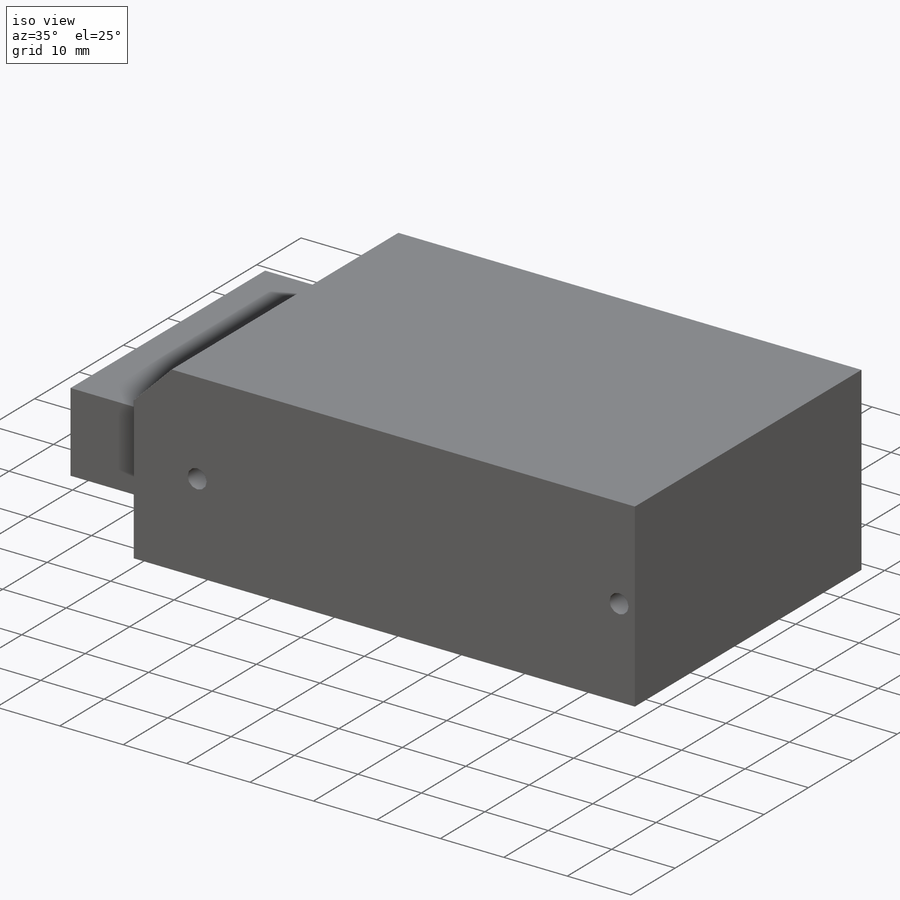
[diagram: iso view]
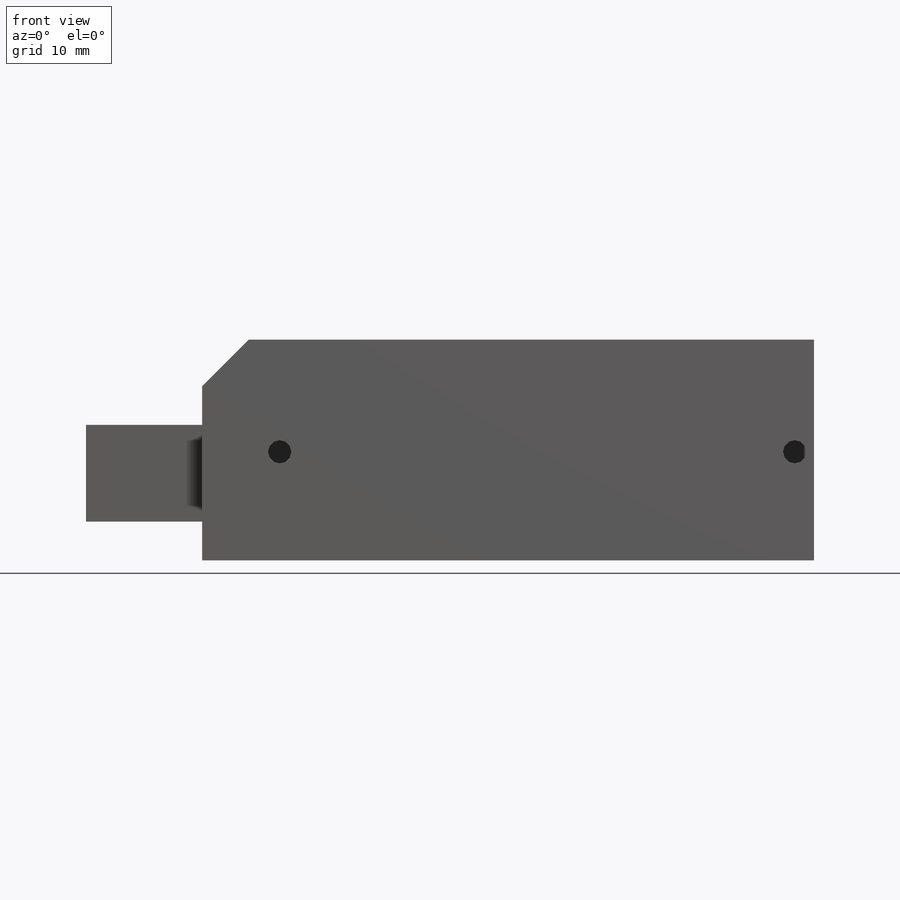
[diagram: front view]
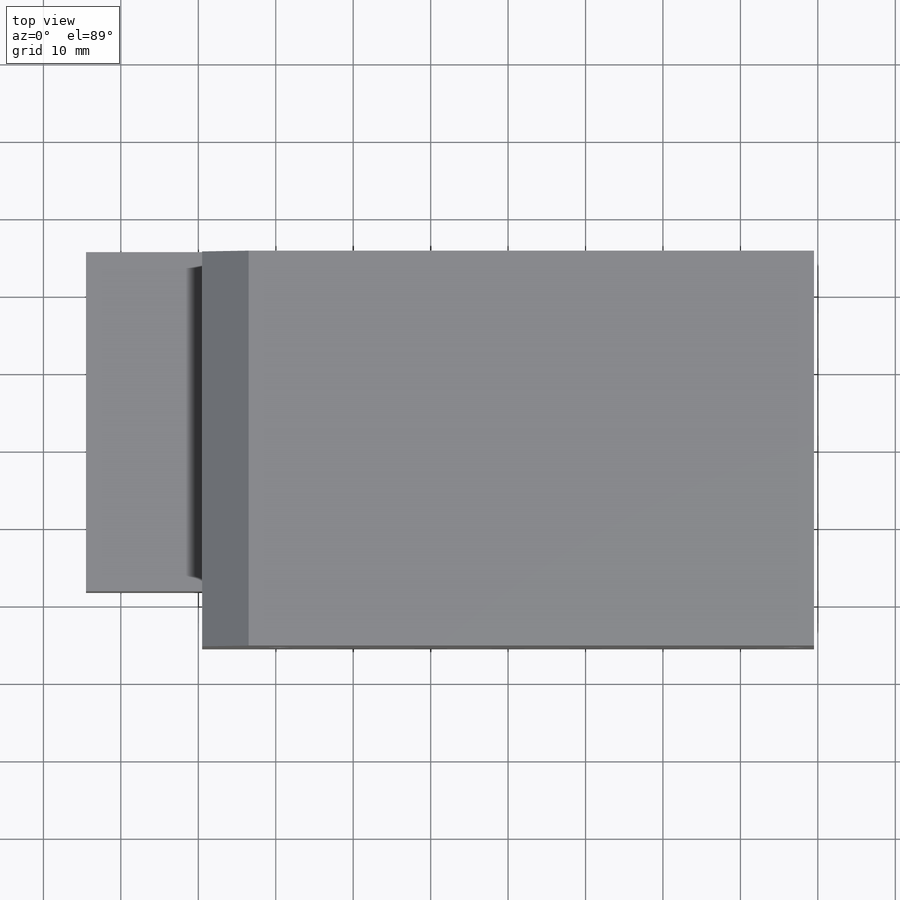
[diagram: top view]
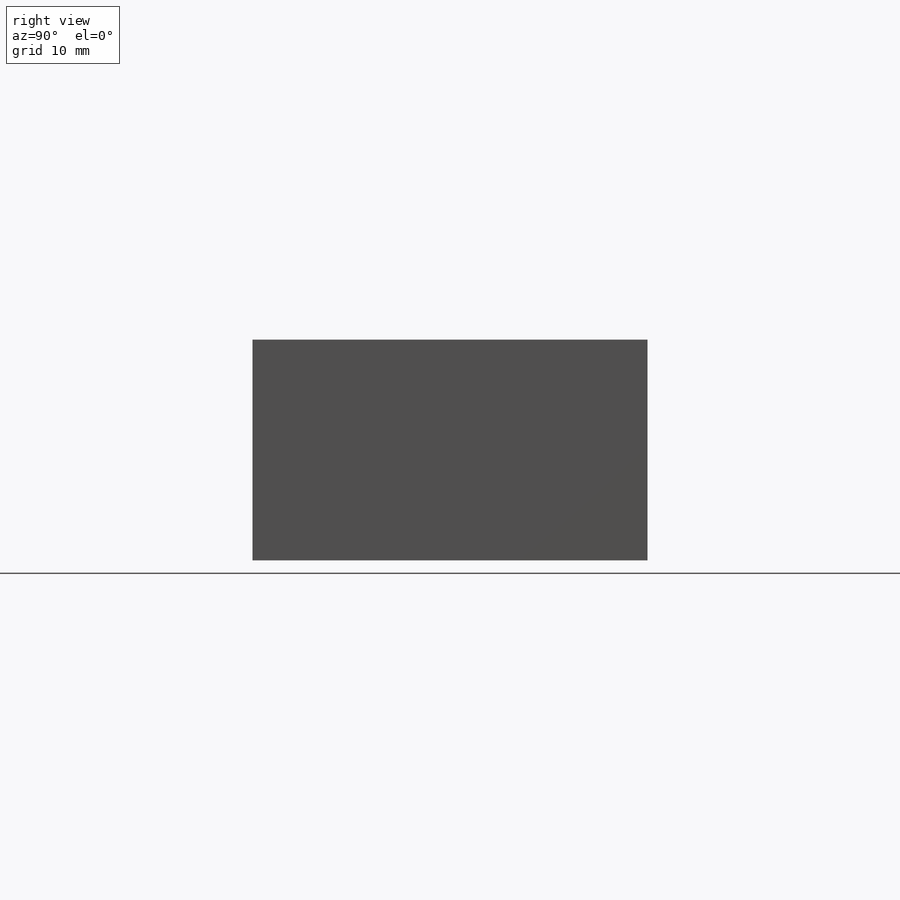
[diagram: right view]
SOLIDWORKS PART (.sldprt)
format: sldprt  version: not decoded by parser v0  size: 204,288 bytes
history: native  units: mm
features: sketch x5, cut_extrude x3, extrude x2, material x1 (+11 scaffold rows collapsed)
feature tree (22):
  scaffold x11  (default folders/planes/origin — collapsed)
  material  "Material <not specified>"
  sketch  "Sketch1"  dims[D1=51.0mm D2=79.0mm]
  extrude  "Boss-Extrude1"  Depth=28.5mm
  sketch  "Sketch2"  dims[D1=5.0mm D2=43.8mm D3=12.5mm]
  extrude  "Boss-Extrude2"  Depth=15mm
  sketch  "Sketch3"  dims[D1=6.0mm D2=6.0mm]
  cut_extrude  "Cut-Extrude1"  [1 undecoded]
  sketch  "Sketch4"  dims[D1=3.0mm D2=3.0mm D3=10.0mm D4=14.0mm D5=66.5mm D6=14.0mm]
  cut_extrude  "Cut-Extrude2"  Depth=15mm
  sketch  "Sketch5"  dims[c1.D5=3.0mm c1.D6=3.0mm c1.D1=13.5mm c1.D2=55.0mm c1.D3=25.5mm c1.D4=25.5mm c2.D5=51.0mm]
  cut_extrude  "Cut-Extrude3"  Depth=15mm
decode coverage: 9 of 10 modeling features carry decoded parameters
note: 1 parameter value undecoded
note: suppression state not decoded; provenance and decode notes live in map.json
